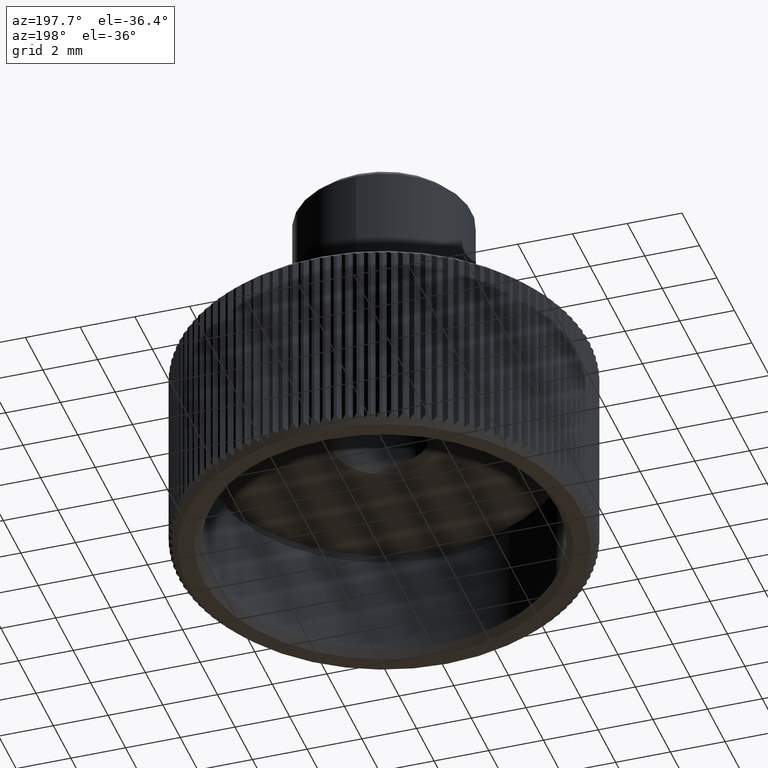
[diagram: clean part render]
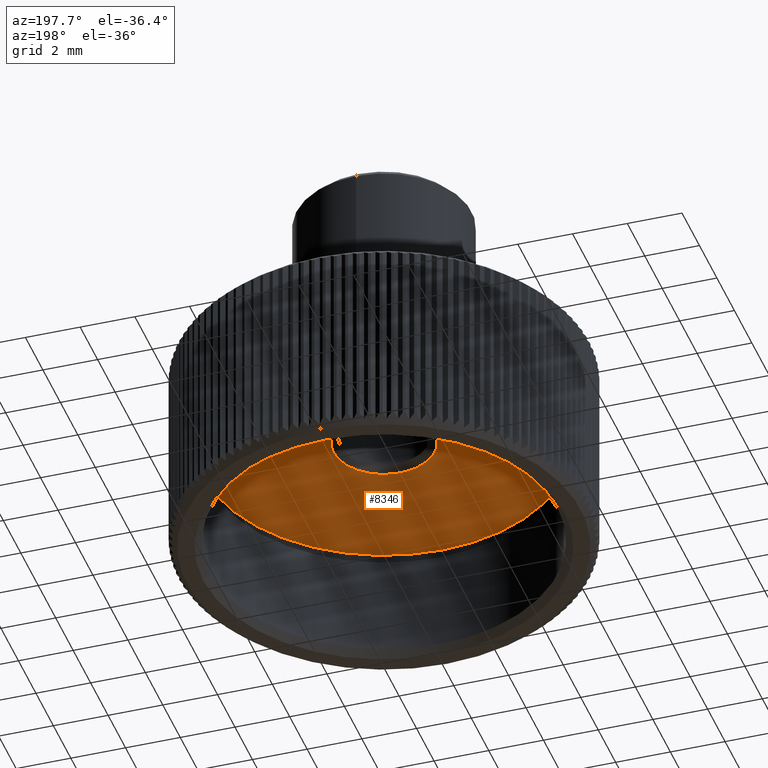
[diagram: same view with one face highlighted and labeled with its STEP entity id]
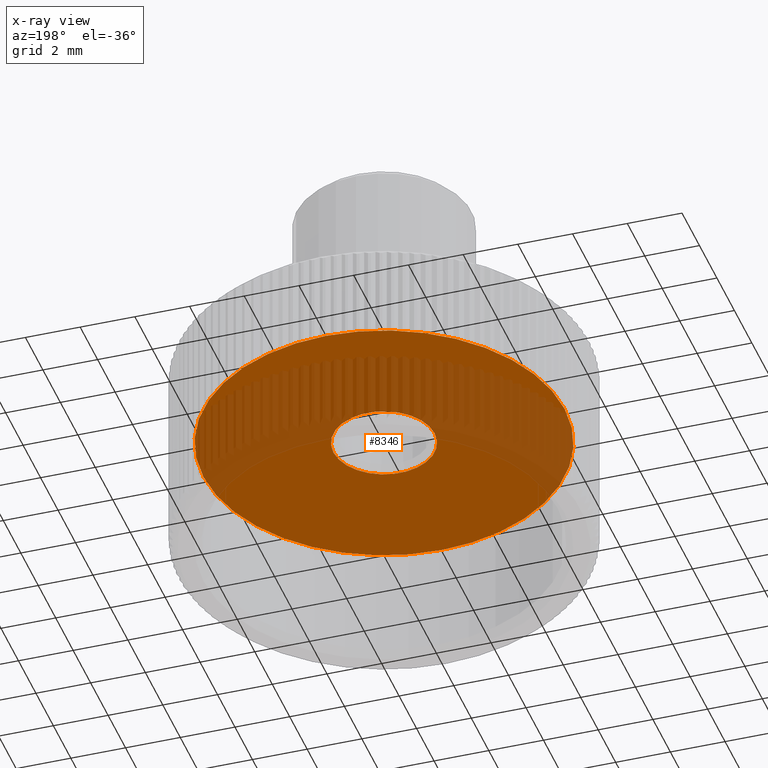
[diagram: x-ray of the same camera — body ghosted, the highlighted face saturated]
A machine part, auxiliary view. The second image highlights one B-rep face of the part: STEP entity #8346.
The next image is the same camera in x-ray: the body ghosted, the highlighted face saturated — about 46% of this face is hidden behind the body in this view.
In plain terms, the highlighted planar face has unit normal (0, 0, -1).
Its self-contained STEP definition (entity closure, byte-faithful):
#70 = VERTEX_POINT ( 'NONE', #11144 ) ;
#173 = CARTESIAN_POINT ( 'NONE',  ( -6.599999999999999645, 0.000000000000000000, 4.500000000000000888 ) ) ;
#316 = DIRECTION ( 'NONE',  ( -1.000000000000000000, 0.000000000000000000, 0.000000000000000000 ) ) ;
#912 = ORIENTED_EDGE ( 'NONE', *, *, #12242, .F. ) ;
#1139 = VERTEX_POINT ( 'NONE', #173 ) ;
#1673 = CARTESIAN_POINT ( 'NONE',  ( 0.000000000000000000, 0.000000000000000000, 4.499999999999948486 ) ) ;
#1828 = DIRECTION ( 'NONE',  ( -1.000000000000000000, 0.000000000000000000, 0.000000000000000000 ) ) ;
#2013 = ORIENTED_EDGE ( 'NONE', *, *, #8876, .T. ) ;
#2016 = CARTESIAN_POINT ( 'NONE',  ( 6.679200000000000692, -6.679200000000000692, 4.500000000000000888 ) ) ;
#2172 = AXIS2_PLACEMENT_3D ( 'NONE', #2016, #10914, #1828 ) ;
#2518 = AXIS2_PLACEMENT_3D ( 'NONE', #12117, #8931, #3022 ) ;
#3022 = DIRECTION ( 'NONE',  ( -1.000000000000000000, 0.000000000000000000, 0.000000000000000000 ) ) ;
#3661 = VERTEX_POINT ( 'NONE', #6682 ) ;
#3686 = AXIS2_PLACEMENT_3D ( 'NONE', #7476, #12649, #316 ) ;
#3892 = EDGE_LOOP ( 'NONE', ( #912, #7714 ) ) ;
#3963 = VERTEX_POINT ( 'NONE', #7051 ) ;
#5161 = CIRCLE ( 'NONE', #3686, 6.599999999999999645 ) ;
#5727 = DIRECTION ( 'NONE',  ( -1.000000000000000000, 0.000000000000000000, 0.000000000000000000 ) ) ;
#6682 = CARTESIAN_POINT ( 'NONE',  ( 1.850000000000052047, 2.265596578422667195E-16, 4.499999999999948486 ) ) ;
#6714 = DIRECTION ( 'NONE',  ( -1.000000000000000000, 0.000000000000000000, 0.000000000000000000 ) ) ;
#6865 = FACE_OUTER_BOUND ( 'NONE', #6934, .T. ) ;
#6934 = EDGE_LOOP ( 'NONE', ( #9654, #2013 ) ) ;
#7001 = PLANE ( 'NONE',  #2172 ) ;
#7051 = CARTESIAN_POINT ( 'NONE',  ( -1.850000000000052047, 0.000000000000000000, 4.499999999999948486 ) ) ;
#7277 = CIRCLE ( 'NONE', #12376, 6.599999999999999645 ) ;
#7476 = CARTESIAN_POINT ( 'NONE',  ( 0.000000000000000000, 0.000000000000000000, 4.500000000000000888 ) ) ;
#7713 = DIRECTION ( 'NONE',  ( 0.000000000000000000, 0.000000000000000000, -1.000000000000000000 ) ) ;
#7714 = ORIENTED_EDGE ( 'NONE', *, *, #12028, .F. ) ;
#7852 = CARTESIAN_POINT ( 'NONE',  ( 0.000000000000000000, 0.000000000000000000, 4.500000000000000888 ) ) ;
#8346 = ADVANCED_FACE ( 'NONE', ( #11108, #6865 ), #7001, .T. ) ;
#8876 = EDGE_CURVE ( 'NONE', #70, #1139, #5161, .T. ) ;
#8931 = DIRECTION ( 'NONE',  ( 0.000000000000000000, 0.000000000000000000, -1.000000000000000000 ) ) ;
#9650 = EDGE_CURVE ( 'NONE', #1139, #70, #7277, .T. ) ;
#9654 = ORIENTED_EDGE ( 'NONE', *, *, #9650, .T. ) ;
#9953 = CIRCLE ( 'NONE', #10571, 1.850000000000052491 ) ;
#10358 = CIRCLE ( 'NONE', #2518, 1.850000000000052491 ) ;
#10571 = AXIS2_PLACEMENT_3D ( 'NONE', #1673, #12491, #5727 ) ;
#10914 = DIRECTION ( 'NONE',  ( 0.000000000000000000, 0.000000000000000000, -1.000000000000000000 ) ) ;
#11108 = FACE_BOUND ( 'NONE', #3892, .T. ) ;
#11144 = CARTESIAN_POINT ( 'NONE',  ( 6.599999999999999645, 8.082668874372531019E-16, 4.500000000000000888 ) ) ;
#12028 = EDGE_CURVE ( 'NONE', #3661, #3963, #10358, .T. ) ;
#12117 = CARTESIAN_POINT ( 'NONE',  ( 0.000000000000000000, 0.000000000000000000, 4.499999999999948486 ) ) ;
#12242 = EDGE_CURVE ( 'NONE', #3963, #3661, #9953, .T. ) ;
#12376 = AXIS2_PLACEMENT_3D ( 'NONE', #7852, #7713, #6714 ) ;
#12491 = DIRECTION ( 'NONE',  ( 0.000000000000000000, 0.000000000000000000, -1.000000000000000000 ) ) ;
#12649 = DIRECTION ( 'NONE',  ( 0.000000000000000000, 0.000000000000000000, -1.000000000000000000 ) ) ;